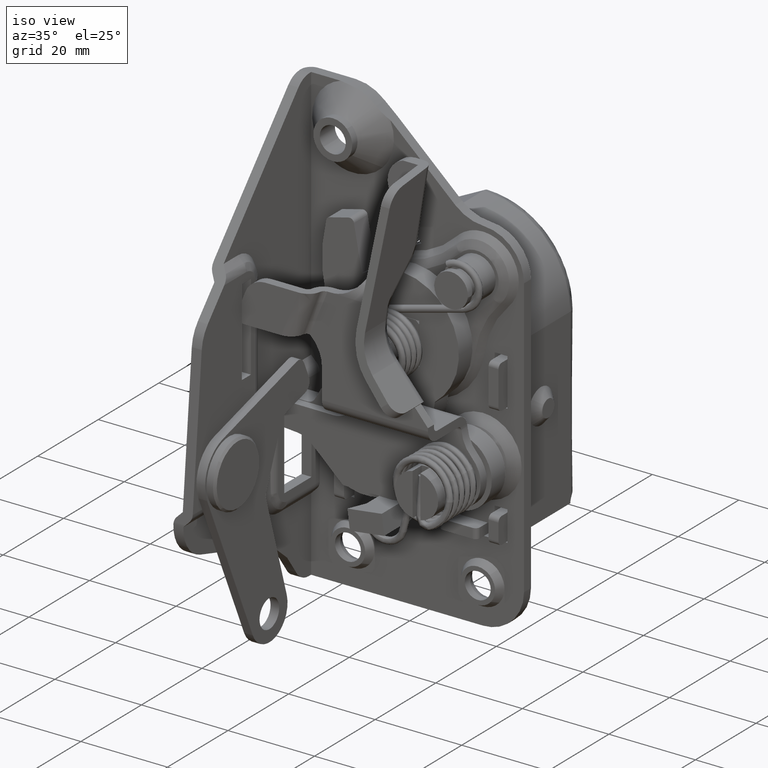
[diagram: clean part render]
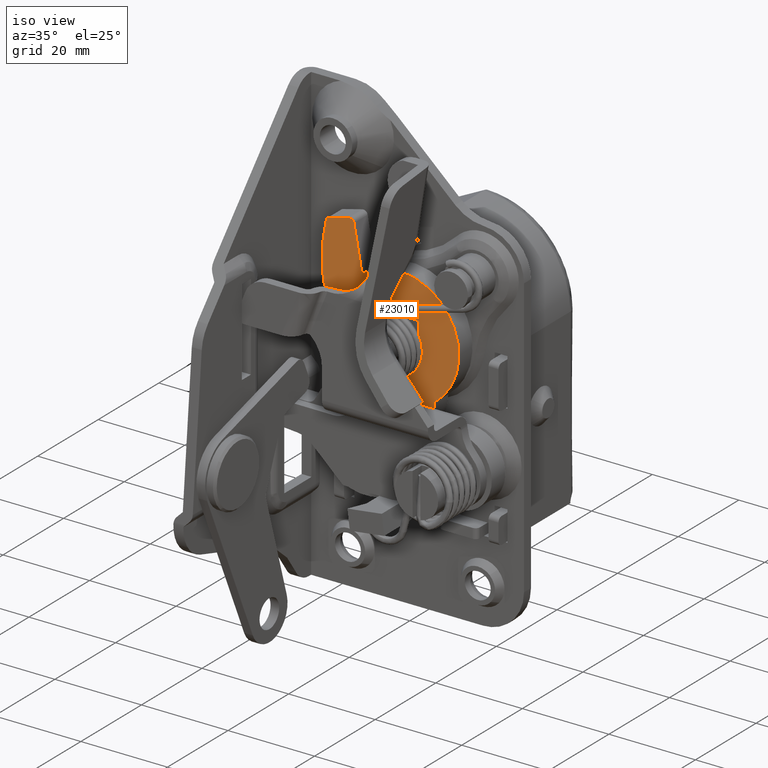
[diagram: same view with one face highlighted and labeled with its STEP entity id]
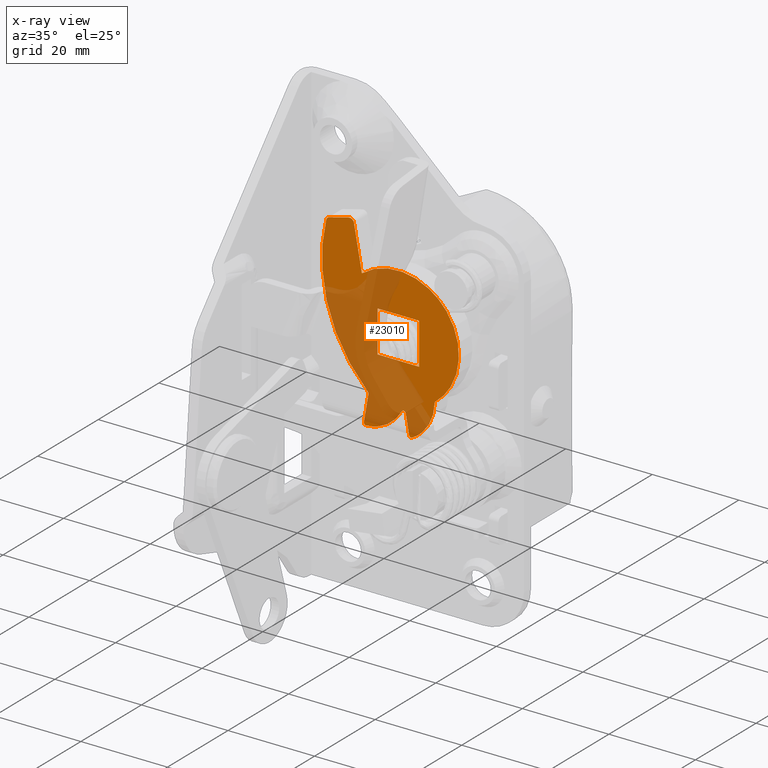
[diagram: x-ray of the same camera — body ghosted, the highlighted face saturated]
A machine part, iso view. The second image highlights one B-rep face of the part: STEP entity #23010.
The next image is the same camera in x-ray: the body ghosted, the highlighted face saturated — about 50% of this face is hidden behind the body in this view.
In plain terms, the highlighted face is a freeform B-spline surface patch.
Its self-contained STEP definition (entity closure, byte-faithful):
#22517=CARTESIAN_POINT('',(16.022885883713350,25.500000000000000,46.012971118875797));
#22518=VERTEX_POINT('',#22517);
#22519=CARTESIAN_POINT('',(17.252072313944151,25.500000000000000,45.222602688267500));
#22520=VERTEX_POINT('',#22519);
#22521=CARTESIAN_POINT('',(16.022885883713350,25.500000000000000,46.012971118875797));
#22522=CARTESIAN_POINT('',(16.155252679536169,25.500000000000011,46.046634549162484));
#22523=CARTESIAN_POINT('',(16.416447252297239,25.499999999999979,46.057612443876920));
#22524=CARTESIAN_POINT('',(16.751562099196249,25.500000000000099,45.938736311603840));
#22525=CARTESIAN_POINT('',(16.982844242407900,25.499999999999869,45.758717482920382));
#22526=CARTESIAN_POINT('',(17.160480637054569,25.500000000000139,45.526833094927248));
#22527=CARTESIAN_POINT('',(17.230775825559778,25.499999999999918,45.340190255608753));
#22528=CARTESIAN_POINT('',(17.252072313944151,25.500000000000000,45.222602688267500));
#22529=B_SPLINE_CURVE_WITH_KNOTS('',3,(#22521,#22522,#22523,#22524,#22525,#22526,#22527,#22528),.UNSPECIFIED.,.F.,.U.,(4,1,1,1,1,4),(0.000000344819460,0.409671226999771,0.768156005629921,1.049773209930478,1.280225253000495,1.638683873540082),.UNSPECIFIED.);
#22530=EDGE_CURVE('',#22518,#22520,#22529,.T.);
#22574=CARTESIAN_POINT('',(10.840340278445019,25.500000000000000,44.151388544499213));
#22575=VERTEX_POINT('',#22574);
#22576=CARTESIAN_POINT('',(11.566838280971719,25.500000000000000,44.885212156369050));
#22577=VERTEX_POINT('',#22576);
#22578=CARTESIAN_POINT('',(10.840340278445019,25.500000000000000,44.151388544499213));
#22579=CARTESIAN_POINT('',(10.879901421897291,25.500000000000000,44.316363471702473));
#22580=CARTESIAN_POINT('',(11.007320490556880,25.500000000000039,44.552512271802151));
#22581=CARTESIAN_POINT('',(11.289247184578880,25.499999999999972,44.784441747775169));
#22582=CARTESIAN_POINT('',(11.468202178430239,25.500000000000011,44.860301468130288));
#22583=CARTESIAN_POINT('',(11.566838280971719,25.500000000000000,44.885212156369050));
#22584=B_SPLINE_CURVE_WITH_KNOTS('',3,(#22578,#22579,#22580,#22581,#22582,#22583),.UNSPECIFIED.,.F.,.U.,(4,1,1,4),(0.000000167621818,0.508673276658181,0.779928028005261,1.085120851293839),.UNSPECIFIED.);
#22585=EDGE_CURVE('',#22575,#22577,#22584,.T.);
#22812=CARTESIAN_POINT('',(43.076368831254577,25.500000000000000,1.545482685600792));
#22813=CARTESIAN_POINT('',(8.274816930494037,25.500000000000000,1.545482685600792));
#22814=CARTESIAN_POINT('',(43.076368831254577,25.500000000000000,48.160125847837399));
#22815=CARTESIAN_POINT('',(8.274816930494037,25.500000000000000,48.160125847837399));
#22816=B_SPLINE_SURFACE_WITH_KNOTS('',1,1,((#22812,#22814),(#22813,#22815)),.UNSPECIFIED.,.F.,.F.,.U.,(2,2),(2,2),(0.0,34.801551900760543),(0.0,46.614643162236611),.UNSPECIFIED.);
#22817=CARTESIAN_POINT('',(20.446727831627449,25.500000000000000,10.820418086907139));
#22818=VERTEX_POINT('',#22817);
#22819=CARTESIAN_POINT('',(20.446727831627449,25.500000000000000,10.820418086907139));
#22820=CARTESIAN_POINT('',(18.685261946066529,25.499999999999989,12.533771049376419));
#22821=CARTESIAN_POINT('',(16.194412065090329,25.500000000000121,15.529998998676030));
#22822=CARTESIAN_POINT('',(13.286091226865301,25.499999999999861,20.520133311691520));
#22823=CARTESIAN_POINT('',(11.447958640852020,25.499999999999918,25.044206842572670));
#22824=CARTESIAN_POINT('',(10.152302694680760,25.499999999999801,30.383108622699421));
#22825=CARTESIAN_POINT('',(9.725606287298536,25.500000000000831,35.440595889311503));
#22826=CARTESIAN_POINT('',(10.039771320875930,25.499999999998291,40.212458407545768));
#22827=CARTESIAN_POINT('',(10.539709145193550,25.500000000001918,42.911432594470497));
#22828=CARTESIAN_POINT('',(10.840340278445019,25.500000000000000,44.151388544499213));
#22829=B_SPLINE_CURVE_WITH_KNOTS('',3,(#22819,#22820,#22821,#22822,#22823,#22824,#22825,#22826,#22827,#22828),.UNSPECIFIED.,.F.,.U.,(4,1,1,1,1,1,1,4),(0.000000023170500,7.371778555183827,11.624739350448030,17.295354419966070,21.973571261885301,28.069484537505382,32.464211178731283,36.291854952805203),.UNSPECIFIED.);
#22830=EDGE_CURVE('',#22818,#22575,#22829,.T.);
#22831=ORIENTED_EDGE('',*,*,#22830,.F.);
#22832=CARTESIAN_POINT('',(20.591011944707599,25.500000000000000,10.378538982228420));
#22833=VERTEX_POINT('',#22832);
#22834=CARTESIAN_POINT('',(20.446727831627449,25.500000000000000,10.820418086907139));
#22835=CARTESIAN_POINT('',(20.511932957113970,25.500000000000000,10.757352152608259));
#22836=CARTESIAN_POINT('',(20.595529309930630,25.500000000000039,10.612671309829549));
#22837=CARTESIAN_POINT('',(20.602870523663761,25.499999999999972,10.448047002890990));
#22838=CARTESIAN_POINT('',(20.591011944707599,25.500000000000000,10.378538982228420));
#22839=B_SPLINE_CURVE_WITH_KNOTS('',3,(#22834,#22835,#22836,#22837,#22838),.UNSPECIFIED.,.F.,.U.,(4,1,4),(0.000000122377966,0.271982852952951,0.483525912874300),.UNSPECIFIED.);
#22840=EDGE_CURVE('',#22818,#22833,#22839,.T.);
#22841=ORIENTED_EDGE('',*,*,#22840,.T.);
#22842=CARTESIAN_POINT('',(19.551921179573100,25.500000000000000,4.245926721045790));
#22843=VERTEX_POINT('',#22842);
#22844=CARTESIAN_POINT('',(19.551921179573100,25.500000000000000,4.245926721045790));
#22845=CARTESIAN_POINT('',(20.591011944707599,25.500000000000000,10.378538982228420));
#22846=QUASI_UNIFORM_CURVE('',1,(#22844,#22845),.UNSPECIFIED.,.F.,.U.);
#22847=EDGE_CURVE('',#22843,#22833,#22846,.T.);
#22848=ORIENTED_EDGE('',*,*,#22847,.F.);
#22849=CARTESIAN_POINT('',(20.070678836903749,25.500000000000000,3.663064040774355));
#22850=VERTEX_POINT('',#22849);
#22851=CARTESIAN_POINT('',(20.070678836903749,25.500000000000000,3.663064040774355));
#22852=CARTESIAN_POINT('',(20.005499443631539,25.499999999999979,3.659642782546039));
#22853=CARTESIAN_POINT('',(19.864401697756790,25.500000000000011,3.680194379116249));
#22854=CARTESIAN_POINT('',(19.678499390189899,25.499999999999979,3.797572401190331));
#22855=CARTESIAN_POINT('',(19.551728862276310,25.500000000000082,4.000266976603457));
#22856=CARTESIAN_POINT('',(19.537723323428679,25.499999999999929,4.163174646238712));
#22857=CARTESIAN_POINT('',(19.551921179573100,25.500000000000000,4.245926721045790));
#22858=B_SPLINE_CURVE_WITH_KNOTS('',3,(#22851,#22852,#22853,#22854,#22855,#22856,#22857),.UNSPECIFIED.,.F.,.U.,(4,1,1,1,4),(0.000000479736383,0.195829564101325,0.419658583003282,0.643445094927589,0.895231541388894),.UNSPECIFIED.);
#22859=EDGE_CURVE('',#22850,#22843,#22858,.T.);
#22860=ORIENTED_EDGE('',*,*,#22859,.F.);
#22861=CARTESIAN_POINT('',(28.294249525278250,25.500000000000000,8.789150174033660));
#22862=VERTEX_POINT('',#22861);
#22863=CARTESIAN_POINT('',(28.294249525278250,25.500000000000000,8.789150174033660));
#22864=CARTESIAN_POINT('',(27.961409326237721,25.499999999999950,8.190490058767729));
#22865=CARTESIAN_POINT('',(27.217504564350708,25.500000000000082,7.127180586009061));
#22866=CARTESIAN_POINT('',(25.788876550728919,25.499999999999961,5.750454404097612));
#22867=CARTESIAN_POINT('',(24.253543598490520,25.500000000000071,4.759457300703686));
#22868=CARTESIAN_POINT('',(22.323706884088420,25.499999999999901,3.962971229098859));
#22869=CARTESIAN_POINT('',(20.938943716635080,25.500000000000089,3.707597104355080));
#22870=CARTESIAN_POINT('',(20.070678836903749,25.500000000000000,3.663064040774355));
#22871=B_SPLINE_CURVE_WITH_KNOTS('',3,(#22863,#22864,#22865,#22866,#22867,#22868,#22869,#22870),.UNSPECIFIED.,.F.,.U.,(4,1,1,1,1,4),(0.000000042454657,2.054872237837221,3.872664546588498,5.927524262903314,7.508202351576718,10.116315110714030),.UNSPECIFIED.);
#22872=EDGE_CURVE('',#22862,#22850,#22871,.T.);
#22873=ORIENTED_EDGE('',*,*,#22872,.F.);
#22874=CARTESIAN_POINT('',(29.223654459049548,25.500000000000000,8.632724735027338));
#22875=VERTEX_POINT('',#22874);
#22876=CARTESIAN_POINT('',(28.294249525278250,25.500000000000000,8.789150174033660));
#22877=CARTESIAN_POINT('',(28.343796259741861,25.499999999999979,8.879039944345079));
#22878=CARTESIAN_POINT('',(28.461355797187512,25.500000000000021,8.988844308327789));
#22879=CARTESIAN_POINT('',(28.691000393259241,25.499999999999989,9.058609946443877));
#22880=CARTESIAN_POINT('',(28.894541434595340,25.499999999999979,9.036264082484932));
#22881=CARTESIAN_POINT('',(29.072451769311531,25.500000000000099,8.926842151317079));
#22882=CARTESIAN_POINT('',(29.179294627810449,25.499999999999780,8.787522182099075));
#22883=CARTESIAN_POINT('',(29.214797987080580,25.500000000000352,8.683196505731070));
#22884=CARTESIAN_POINT('',(29.223654459049548,25.500000000000000,8.632724735027338));
#22885=B_SPLINE_CURVE_WITH_KNOTS('',3,(#22876,#22877,#22878,#22879,#22880,#22881,#22882,#22883,#22884),.UNSPECIFIED.,.F.,.U.,(4,1,1,1,1,1,4),(0.000000957609938,0.307511007290786,0.461288463928575,0.711080578970426,0.903306333082787,1.076300899449290,1.230039653242913),.UNSPECIFIED.);
#22886=EDGE_CURVE('',#22862,#22875,#22885,.T.);
#22887=ORIENTED_EDGE('',*,*,#22886,.T.);
#22888=CARTESIAN_POINT('',(29.983355580335701,25.500000000000000,4.313007782656396));
#22889=VERTEX_POINT('',#22888);
#22890=CARTESIAN_POINT('',(29.983355580335701,25.500000000000000,4.313007782656396));
#22891=CARTESIAN_POINT('',(29.223654459049548,25.500000000000000,8.632724735027338));
#22892=QUASI_UNIFORM_CURVE('',1,(#22890,#22891),.UNSPECIFIED.,.F.,.U.);
#22893=EDGE_CURVE('',#22889,#22875,#22892,.T.);
#22894=ORIENTED_EDGE('',*,*,#22893,.F.);
#22895=CARTESIAN_POINT('',(30.716629513518999,25.500000000000000,3.961434508175640));
#22896=VERTEX_POINT('',#22895);
#22897=CARTESIAN_POINT('',(30.716629513518999,25.500000000000000,3.961434508175640));
#22898=CARTESIAN_POINT('',(30.638676325041210,25.500000000000000,3.918311224550873));
#22899=CARTESIAN_POINT('',(30.469197386228220,25.500000000000021,3.878085856581185));
#22900=CARTESIAN_POINT('',(30.243624062637551,25.500000000000021,3.940210224275863));
#22901=CARTESIAN_POINT('',(30.064570072813130,25.500000000000021,4.086478076895022));
#22902=CARTESIAN_POINT('',(29.998533485192510,25.499999999999989,4.225218168652794));
#22903=CARTESIAN_POINT('',(29.983355580335701,25.500000000000000,4.313007782656396));
#22904=B_SPLINE_CURVE_WITH_KNOTS('',3,(#22897,#22898,#22899,#22900,#22901,#22902,#22903),.UNSPECIFIED.,.F.,.U.,(4,1,1,1,4),(0.000000360940797,0.267130919353580,0.504557943983990,0.682638442098000,0.949769000510716),.UNSPECIFIED.);
#22905=EDGE_CURVE('',#22896,#22889,#22904,.T.);
#22906=ORIENTED_EDGE('',*,*,#22905,.F.);
#22907=CARTESIAN_POINT('',(35.898636561230902,25.500000000000000,12.559873029427219));
#22908=VERTEX_POINT('',#22907);
#22909=CARTESIAN_POINT('',(35.898636561230902,25.500000000000000,12.559873029427219));
#22910=CARTESIAN_POINT('',(35.882849308870107,25.500000000000082,11.573924489165680));
#22911=CARTESIAN_POINT('',(35.655523684145258,25.499999999999890,10.208337440044090));
#22912=CARTESIAN_POINT('',(34.961293982431428,25.500000000000188,8.417796751146199));
#22913=CARTESIAN_POINT('',(34.304515417144209,25.499999999999641,7.242252372286925));
#22914=CARTESIAN_POINT('',(33.353823167811903,25.500000000000089,6.000185256911610));
#22915=CARTESIAN_POINT('',(32.203711167992907,25.500000000000661,4.895005362120908));
#22916=CARTESIAN_POINT('',(31.220700985429470,25.499999999999350,4.238430582960504));
#22917=CARTESIAN_POINT('',(30.716629513518999,25.500000000000000,3.961434508175640));
#22918=B_SPLINE_CURVE_WITH_KNOTS('',3,(#22909,#22910,#22911,#22912,#22913,#22914,#22915,#22916,#22917),.UNSPECIFIED.,.F.,.U.,(4,1,1,1,1,1,4),(0.000000045432085,2.958006867136046,4.108348931822480,5.751646447074042,6.984168255734858,8.791849853542100,10.517345387544109),.UNSPECIFIED.);
#22919=EDGE_CURVE('',#22908,#22896,#22918,.T.);
#22920=ORIENTED_EDGE('',*,*,#22919,.F.);
#22921=CARTESIAN_POINT('',(36.091721203454753,25.500000000000000,12.946388519488300));
#22922=VERTEX_POINT('',#22921);
#22923=CARTESIAN_POINT('',(35.898636561230902,25.500000000000000,12.559873029427219));
#22924=CARTESIAN_POINT('',(35.899662065387467,25.499999999999989,12.625025191263481));
#22925=CARTESIAN_POINT('',(35.931678205089497,25.500000000000039,12.773407471781310));
#22926=CARTESIAN_POINT('',(36.025437741130332,25.499999999999972,12.895105695859710));
#22927=CARTESIAN_POINT('',(36.091721203454753,25.500000000000000,12.946388519488300));
#22928=B_SPLINE_CURVE_WITH_KNOTS('',3,(#22923,#22924,#22925,#22926,#22927),.UNSPECIFIED.,.F.,.U.,(4,1,4),(0.000000161244922,0.195499776266354,0.446833796635748),.UNSPECIFIED.);
#22929=EDGE_CURVE('',#22908,#22922,#22928,.T.);
#22930=ORIENTED_EDGE('',*,*,#22929,.T.);
#22931=CARTESIAN_POINT('',(38.619290527061850,25.500000000000000,32.506549134331287));
#22932=VERTEX_POINT('',#22931);
#22933=CARTESIAN_POINT('',(38.619290527061850,25.500000000000000,32.506549134331287));
#22934=CARTESIAN_POINT('',(39.000192768946782,25.500000000000000,32.008677569891852));
#22935=CARTESIAN_POINT('',(39.821364626211270,25.500000000000028,30.771309767440481));
#22936=CARTESIAN_POINT('',(40.722269718273630,25.499999999999979,28.792044847529379));
#22937=CARTESIAN_POINT('',(41.225907441465083,25.500000000000188,26.915625516476350));
#22938=CARTESIAN_POINT('',(41.483574298180962,25.499999999999311,25.166240488639890));
#22939=CARTESIAN_POINT('',(41.549503457194092,25.500000000000590,22.995836250034689));
#22940=CARTESIAN_POINT('',(41.122453049755023,25.499999999999279,20.333355881047321));
#22941=CARTESIAN_POINT('',(40.142211386519591,25.499999999999648,17.826935202061492));
#22942=CARTESIAN_POINT('',(39.018845782272571,25.500000000000330,15.968698286313270));
#22943=CARTESIAN_POINT('',(37.729540648780123,25.500000000000028,14.367939905181000));
#22944=CARTESIAN_POINT('',(36.721693528808288,25.499999999999918,13.435955664118801));
#22945=CARTESIAN_POINT('',(36.091721203454753,25.500000000000000,12.946388519488300));
#22946=B_SPLINE_CURVE_WITH_KNOTS('',3,(#22933,#22934,#22935,#22936,#22937,#22938,#22939,#22940,#22941,#22942,#22943,#22944,#22945),.UNSPECIFIED.,.F.,.U.,(4,1,1,1,1,1,1,1,1,1,4),(0.000192880584429,1.880805338643430,4.445287595670337,6.496872659677562,7.693636063211606,9.745223340313073,12.993525190431340,15.728979776089499,17.780573805598170,19.490240835122830,21.883723981429512),.UNSPECIFIED.);
#22947=EDGE_CURVE('',#22932,#22922,#22946,.T.);
#22948=ORIENTED_EDGE('',*,*,#22947,.F.);
#22949=CARTESIAN_POINT('',(19.079122413096751,25.500000000000000,35.184311363083353));
#22950=VERTEX_POINT('',#22949);
#22951=CARTESIAN_POINT('',(19.079122413096751,25.500000000000000,35.184311363083353));
#22952=CARTESIAN_POINT('',(19.989506047462839,25.499999999999972,35.870124803692399));
#22953=CARTESIAN_POINT('',(21.581160189699521,25.500000000000071,36.787744606764342));
#22954=CARTESIAN_POINT('',(24.231984247723769,25.499999999999989,37.689395755959332));
#22955=CARTESIAN_POINT('',(26.837694201863108,25.499999999999950,38.085416938094113));
#22956=CARTESIAN_POINT('',(29.240230019520869,25.500000000000039,37.948702922562738));
#22957=CARTESIAN_POINT('',(31.305166673877491,25.500000000000039,37.509617132896672));
#22958=CARTESIAN_POINT('',(33.142180544356457,25.499999999999929,36.877232194724982));
#22959=CARTESIAN_POINT('',(35.261470121002631,25.500000000000220,35.745990697201727));
#22960=CARTESIAN_POINT('',(37.141244557001933,25.499999999999488,34.245914011942588));
#22961=CARTESIAN_POINT('',(38.203790555601678,25.500000000001030,33.049695595408807));
#22962=CARTESIAN_POINT('',(38.619290527061850,25.500000000000000,32.506549134331287));
#22963=B_SPLINE_CURVE_WITH_KNOTS('',3,(#22951,#22952,#22953,#22954,#22955,#22956,#22957,#22958,#22959,#22960,#22961,#22962),.UNSPECIFIED.,.F.,.U.,(4,1,1,1,1,1,1,1,1,4),(0.000192880713112,3.419494329315050,5.471078786623465,8.377501857616293,11.283884915451431,12.651596076121461,14.703188224757939,17.096710422073730,19.832176457084891,21.883727214141789),.UNSPECIFIED.);
#22964=EDGE_CURVE('',#22950,#22932,#22963,.T.);
#22965=ORIENTED_EDGE('',*,*,#22964,.F.);
#22966=CARTESIAN_POINT('',(17.252072313944151,25.500000000000000,45.222602688267500));
#22967=CARTESIAN_POINT('',(19.079122413096751,25.500000000000000,35.184311363083353));
#22968=QUASI_UNIFORM_CURVE('',1,(#22966,#22967),.UNSPECIFIED.,.F.,.U.);
#22969=EDGE_CURVE('',#22520,#22950,#22968,.T.);
#22970=ORIENTED_EDGE('',*,*,#22969,.F.);
#22971=ORIENTED_EDGE('',*,*,#22530,.F.);
#22972=CARTESIAN_POINT('',(11.566838280971719,25.500000000000000,44.885212156369050));
#22973=CARTESIAN_POINT('',(16.022885883713350,25.500000000000000,46.012971118875797));
#22974=QUASI_UNIFORM_CURVE('',1,(#22972,#22973),.UNSPECIFIED.,.F.,.U.);
#22975=EDGE_CURVE('',#22577,#22518,#22974,.T.);
#22976=ORIENTED_EDGE('',*,*,#22975,.F.);
#22977=ORIENTED_EDGE('',*,*,#22585,.F.);
#22978=EDGE_LOOP('',(#22831,#22841,#22848,#22860,#22873,#22887,#22894,#22906,#22920,#22930,#22948,#22965,#22970,#22971,#22976,#22977));
#22979=FACE_OUTER_BOUND('',#22978,.T.);
#22980=CARTESIAN_POINT('',(22.699999999999701,25.500000000000000,19.199999999999999));
#22981=VERTEX_POINT('',#22980);
#22982=CARTESIAN_POINT('',(22.699999999999701,25.500000000000000,28.800000000000001));
#22983=VERTEX_POINT('',#22982);
#22984=CARTESIAN_POINT('',(22.699999999999701,25.500000000000000,19.199999999999999));
#22985=CARTESIAN_POINT('',(22.699999999999701,25.500000000000000,28.800000000000001));
#22986=QUASI_UNIFORM_CURVE('',1,(#22984,#22985),.UNSPECIFIED.,.F.,.U.);
#22987=EDGE_CURVE('',#22981,#22983,#22986,.T.);
#22988=ORIENTED_EDGE('',*,*,#22987,.T.);
#22989=CARTESIAN_POINT('',(32.299999999999997,25.500000000000000,28.800000000000001));
#22990=VERTEX_POINT('',#22989);
#22991=CARTESIAN_POINT('',(22.699999999999701,25.500000000000000,28.800000000000001));
#22992=CARTESIAN_POINT('',(32.299999999999997,25.500000000000000,28.800000000000001));
#22993=QUASI_UNIFORM_CURVE('',1,(#22991,#22992),.UNSPECIFIED.,.F.,.U.);
#22994=EDGE_CURVE('',#22983,#22990,#22993,.T.);
#22995=ORIENTED_EDGE('',*,*,#22994,.T.);
#22996=CARTESIAN_POINT('',(32.299999999999997,25.500000000000000,19.199999999999999));
#22997=VERTEX_POINT('',#22996);
#22998=CARTESIAN_POINT('',(32.299999999999997,25.500000000000000,28.800000000000001));
#22999=CARTESIAN_POINT('',(32.299999999999997,25.500000000000000,19.199999999999999));
#23000=QUASI_UNIFORM_CURVE('',1,(#22998,#22999),.UNSPECIFIED.,.F.,.U.);
#23001=EDGE_CURVE('',#22990,#22997,#23000,.T.);
#23002=ORIENTED_EDGE('',*,*,#23001,.T.);
#23003=CARTESIAN_POINT('',(32.299999999999997,25.500000000000000,19.199999999999999));
#23004=CARTESIAN_POINT('',(22.699999999999701,25.500000000000000,19.199999999999999));
#23005=QUASI_UNIFORM_CURVE('',1,(#23003,#23004),.UNSPECIFIED.,.F.,.U.);
#23006=EDGE_CURVE('',#22997,#22981,#23005,.T.);
#23007=ORIENTED_EDGE('',*,*,#23006,.T.);
#23008=EDGE_LOOP('',(#22988,#22995,#23002,#23007));
#23009=FACE_BOUND('',#23008,.T.);
#23010=ADVANCED_FACE('',(#22979,#23009),#22816,.F.);